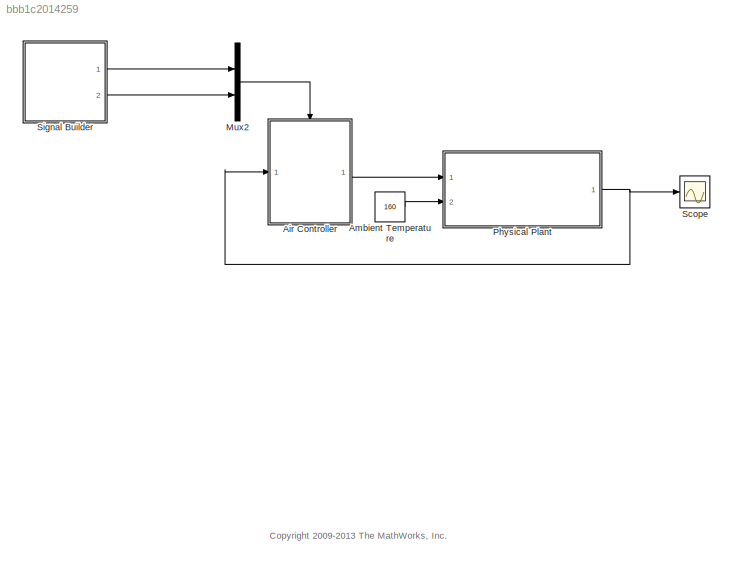
MODEL slx_bbb1c2014259
KIND model
CONFIG AbsTol = auto
CONFIG EnableMultiTasking = on
CONFIG FixedStep = 1000
CONFIG MaxStep = auto
CONFIG MinStep = auto
CONFIG RelTol = 1e-3
CONFIG SampleTimeConstraint = Unconstrained
CONFIG Solver = ode45
CONFIG SolverName = ode45
CONFIG StartTime = 0.0
CONFIG StopTime = 600
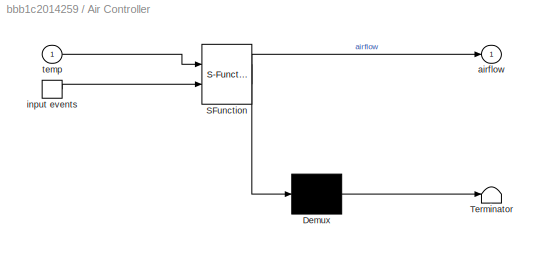
BLOCK [SubSystem] Air Controller
  ErrorFcn = Stateflow.Translate.translate
  PermitHierarchicalResolution = ExplicitOnly
  Ports = [1, 1, 0, 1]
  RequestExecContextInheritance = off
  SFBlockType = Chart
  TreatAsAtomicUnit = on
  Variant = off
BLOCK [Demux] Air Controller/ Demux 
  Outputs = 1
  Ports = [1, 1]
BLOCK [S-Function] Air Controller/ SFunction 
  EnableBusSupport = off
  FunctionName = sf_sfun
  PortCounts = [2 2]
  Ports = [2, 2]
  SFcnIsStateOwnerBlock = off
  SFunctionDeploymentMode = off
  Tag = Stateflow S-Function sf_aircontrol 1
BLOCK [Terminator] Air Controller/ Terminator 
BLOCK [TriggerPort] Air Controller/ input events 
  Ports = [0, 1]
  ShowOutputPort = on
  TriggerType = either
  VariantControl = (inherit)
BLOCK [Outport] Air Controller/airflow
  IconDisplay = Port number
BLOCK [Inport] Air Controller/temp
  IconDisplay = Port number
BLOCK [Constant] Ambient Temperature
  Value = 160
BLOCK [Mux] Mux2
  DisplayOption = bar
  Inputs = 2
  Ports = [2, 1]
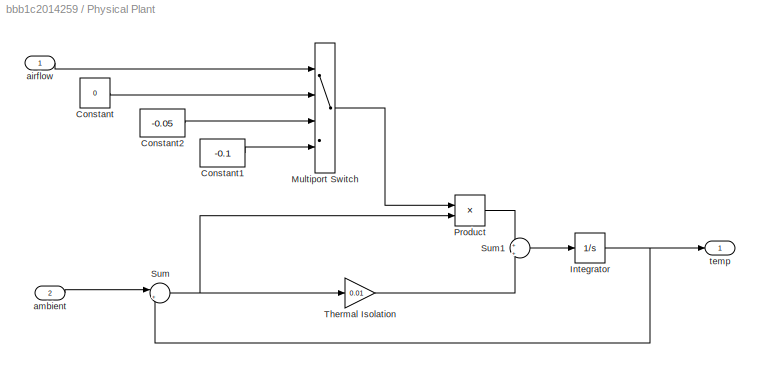
BLOCK [SubSystem] Physical Plant
  Ports = [2, 1]
  RequestExecContextInheritance = off
  Variant = off
BLOCK [Constant] Physical Plant/Constant
  Value = 0
BLOCK [Constant] Physical Plant/Constant1
  Value = -0.1
BLOCK [Constant] Physical Plant/Constant2
  Value = -0.05
BLOCK [Integrator] Physical Plant/Integrator
  InitialCondition = 70
  Ports = [1, 1]
BLOCK [MultiPortSwitch] Physical Plant/Multiport Switch
  DataPortOrder = Zero-based contiguous
  InputSameDT = off
  Ports = [4, 1]
  SaturateOnIntegerOverflow = off
  zeroidx = on
BLOCK [Product] Physical Plant/Product
  InputSameDT = off
  OutDataTypeStr = Inherit: Inherit via internal rule
  Ports = [2, 1]
  SaturateOnIntegerOverflow = off
BLOCK [Sum] Physical Plant/Sum
  IconShape = round
  InputSameDT = off
  Inputs = |+-
  OutDataTypeStr = Inherit: Inherit via internal rule
  Ports = [2, 1]
  SaturateOnIntegerOverflow = off
BLOCK [Sum] Physical Plant/Sum1
  IconShape = round
  InputSameDT = off
  Inputs = +|+
  OutDataTypeStr = Inherit: Inherit via internal rule
  Ports = [2, 1]
  SaturateOnIntegerOverflow = off
BLOCK [Gain] Physical Plant/Thermal Isolation
  Gain = 0.01
  OutDataTypeStr = Inherit: Inherit via internal rule
  ParamDataTypeStr = Inherit: Inherit via internal rule
  SaturateOnIntegerOverflow = off
BLOCK [Inport] Physical Plant/airflow
  IconDisplay = Port number
BLOCK [Inport] Physical Plant/ambient
  IconDisplay = Port number
  Port = 2
BLOCK [Outport] Physical Plant/temp
  IconDisplay = Port number
BLOCK [Scope] Scope
  NumInputPorts = 1
  Ports = [1]
  ScopeSpecificationString = Simulink.scopes.TimeScopeBlockCfg('CurrentConfiguration', extmgr.ConfigurationSet(extmgr.Configuration('Core','General UI',true),extmgr.Configuration('Core','Source UI',true),extmgr.Configuration('Sources','WiredSimulink',true,'DataLoggingSaveFormat','StructureWithTime','DataLoggingDecimation','1'),extmgr.Configuration('Visuals','Time Domain',true,'SerializedDisplays',{struct('MinYLimReal','60','M...<+1704ch>
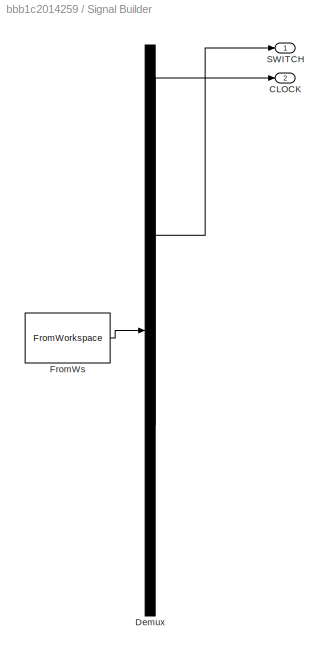
BLOCK [SubSystem] Signal Builder
  ClipboardFcn = sigbuilder_block('clipboard');
  CloseFcn = sigbuilder_block('close');
  ContinueFcn = sigbuilder_block('continue')
  CopyFcn = sigbuilder_block('copy');
  DeleteFcn = sigbuilder_block('delete');
  LoadFcn = sigbuilder_block('load');
  MaskHideContents = on
  ModelCloseFcn = sigbuilder_block('modelClose');
  NameChangeFcn = sigbuilder_block('namechange');
  OpenFcn = sigbuilder_block('open',[88.3417 74.8984 604.949 351.446 ]);
  PauseFcn = sigbuilder_block('pause')
  Ports = [0, 2]
  PreSaveFcn = sigbuilder_block('preSave');
  RequestExecContextInheritance = off
  StartFcn = sigbuilder_block('start');
  StopFcn = sigbuilder_block('stop');
  Tag = STV Subsys
  Variant = off
BLOCK [Outport] Signal Builder/CLOCK
  IconDisplay = Port number
  Port = 2
  Tag = STV Outport
BLOCK [Demux] Signal Builder/Demux
  Outputs = 2
  Ports = [1, 2]
  Tag = STV Demux
BLOCK [FromWorkspace] Signal Builder/FromWs
  SampleTime = 0
  Tag = STV FromWs
  VariableName = tuvar
  ZeroCross = on
BLOCK [Outport] Signal Builder/SWITCH
  IconDisplay = Port number
  Tag = STV Outport
ANNOTATION (root): <copyright redacted>
LINE Air Controller:1 -> Physical Plant:1
LINE Ambient Temperature:1 -> Physical Plant:2
LINE Mux2:1 -> Air Controller:trigger
LINE Physical Plant/Constant1:1 -> Physical Plant/Multiport Switch:4
LINE Physical Plant/Constant2:1 -> Physical Plant/Multiport Switch:3
LINE Physical Plant/Constant:1 -> Physical Plant/Multiport Switch:2
NET Physical Plant/Integrator:1 -> Physical Plant/Sum:2, Physical Plant/temp:1
LINE Physical Plant/Multiport Switch:1 -> Physical Plant/Product:1
LINE Physical Plant/Product:1 -> Physical Plant/Sum1:1
LINE Physical Plant/Sum1:1 -> Physical Plant/Integrator:1
NET Physical Plant/Sum:1 -> Physical Plant/Product:2, Physical Plant/Thermal Isolation:1
LINE Physical Plant/Thermal Isolation:1 -> Physical Plant/Sum1:2
LINE Physical Plant/airflow:1 -> Physical Plant/Multiport Switch:1
LINE Physical Plant/ambient:1 -> Physical Plant/Sum:1
NET Physical Plant:1 -> Air Controller:1, Scope:1
LINE Signal Builder/Demux:1 -> Signal Builder/SWITCH:1
LINE Signal Builder/Demux:2 -> Signal Builder/CLOCK:1
LINE Signal Builder/FromWs:1 -> Signal Builder/Demux:1
LINE Signal Builder:1 -> Mux2:1
LINE Signal Builder:2 -> Mux2:2
note: NET lines group one-source signal fan-out (src -> all destinations, sorted); 1:1 wires keep LINE
CHART Air Controller states=9 transitions=9
  STATE_LABEL 'PowerOn'
  STATE_LABEL 'FAN1'
  STATE_LABEL 'On'
  STATE_LABEL 'Off'
  STATE_LABEL '[temp < 120]'
  STATE_LABEL '[temp >=120]'
  STATE_LABEL 'FAN2'
  STATE_LABEL 'On'
  STATE_LABEL 'Off'
  STATE_LABEL '[temp<150]'
  STATE_LABEL '[temp>=150]'
  STATE_LABEL 'SpeedValue\n\ndu: airflow = in(FAN1.On) + in(FAN2.On);'
  STATE_LABEL 'FAN1'
  STATE_LABEL 'On'
  STATE_LABEL 'Off'
  STATE_LABEL '[temp < 120]'
  STATE_LABEL '[temp >=120]'
  STATE_LABEL 'On'
  STATE_LABEL 'Off'
  STATE_LABEL 'FAN2'
  STATE_LABEL 'On'
  STATE_LABEL 'Off'
  STATE_LABEL '[temp<150]'
  STATE_LABEL '[temp>=150]'
  STATE_LABEL 'On'
  STATE_LABEL 'Off'
  STATE_LABEL 'SpeedValue\n\ndu: airflow = in(FAN1.On) + in(FAN2.On);'
  STATE_LABEL 'PowerOff\nen:\nairflow = 0;'
